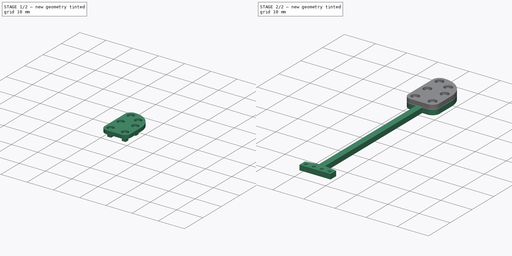
[diagram: build sequence overview — one tinted view per stage of 2, left to right]
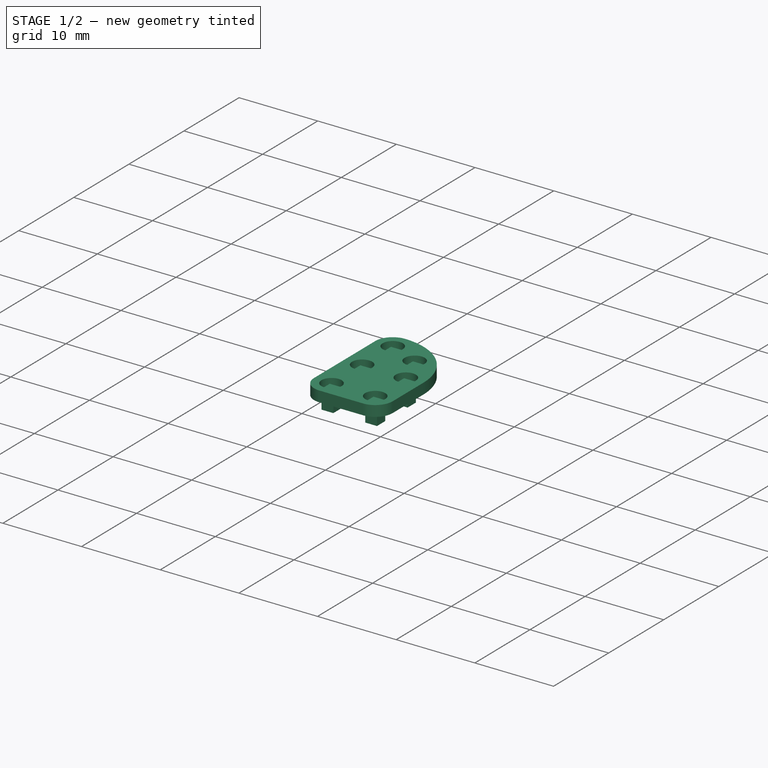
[diagram: stage 1 of 2 — iso view after this stage's code; geometry added in this stage tinted green]
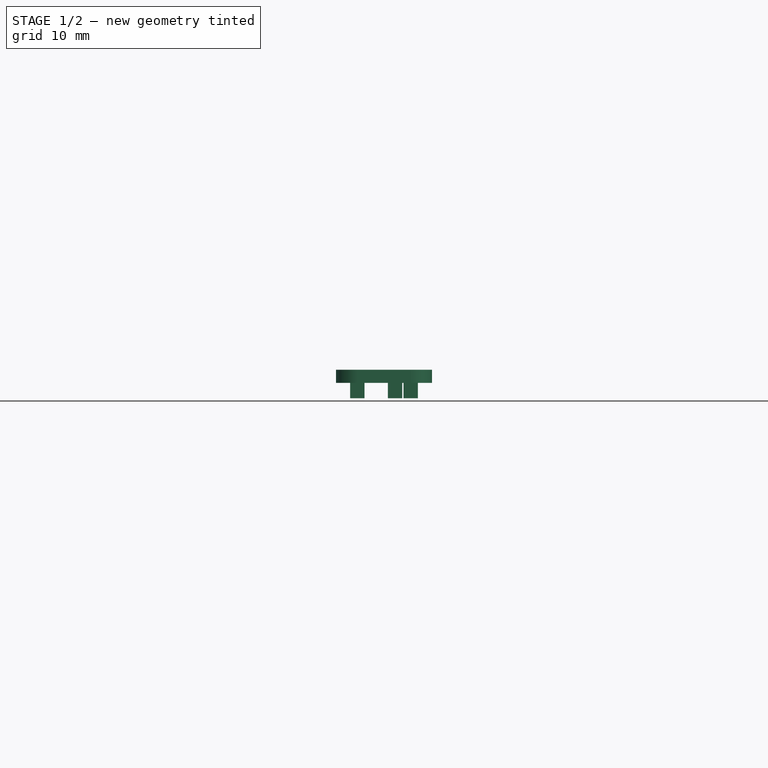
[diagram: stage 1 of 2 — front view after this stage's code; geometry added in this stage tinted green]
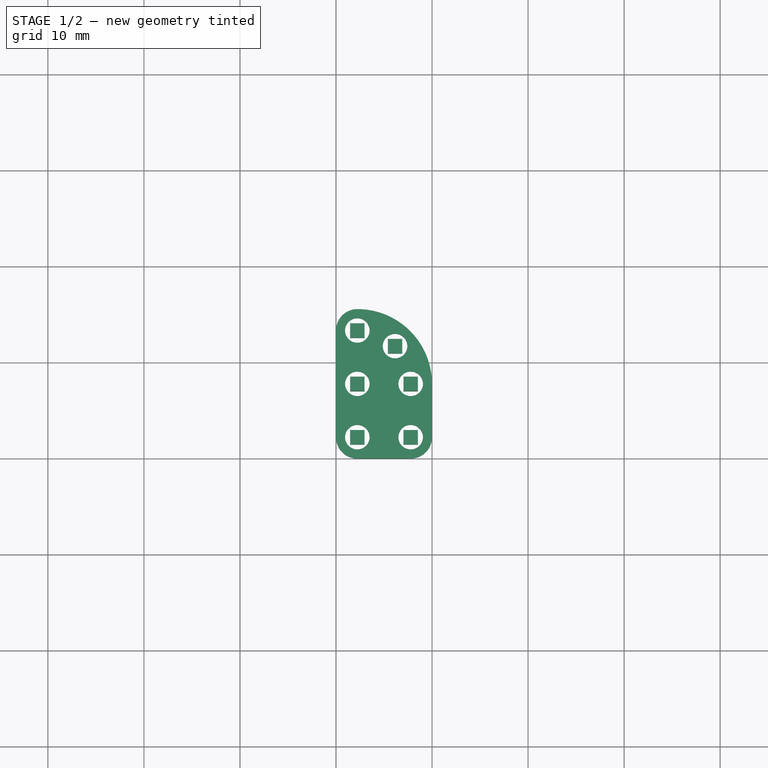
[diagram: stage 1 of 2 — top view after this stage's code; geometry added in this stage tinted green]
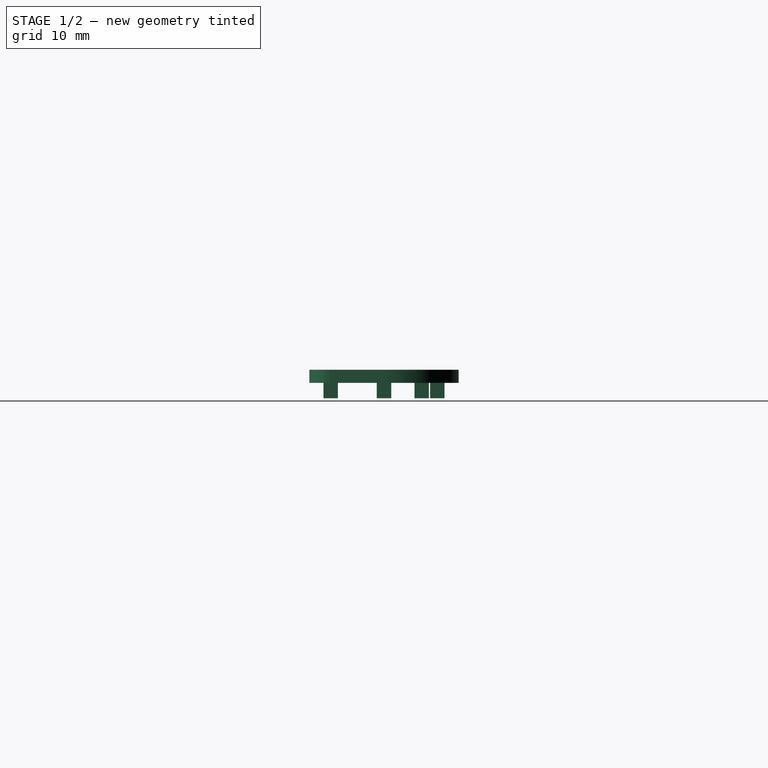
[diagram: stage 1 of 2 — right view after this stage's code; geometry added in this stage tinted green]
FCSTD DOCUMENT  (FreeCAD 1.1R14555 (Git shallow))
Label: PU_001
License: All rights reserved
LicenseURL: http://en.wikipedia.org/wiki/All_rights_reserved
objects: Sketcher::SketchObject×4, PartDesign::Pad×4, App::VarSet×1, App::Point×1, PartDesign::Body×1
note: 21 computed .brp shape members not serialized (recipe doc carries the construction recipe); baked Part::Feature solids carry a one-line shape summary decoded from their .brp

FEATURE [App::VarSet] VarSet
  Distants = 5.55556
  Hight = 15.6667
  expr: Distants = 250 / 45
  expr: Hight = 705 / 45
FEATURE [App::Point] Origin001
  Role = Origin
FEATURE [Sketcher::SketchObject] Sketch
  ArcFitTolerance = 1e-06
  AttachmentSupport = -> [Origin]
  ExternalTypes = [0]
  FullyConstrained = false
  MakeInternals = false
  MapMode = 5
  expr: Constraints[22] = 250 / 45
  expr: Constraints[5] = 115 / 45
  sketch-geometry (22):
    g0: Circle CenterX=2.22 CenterY=13.3311 CenterZ=0 NormalX=0 NormalY=0 NormalZ=1 AngleXU=0 Radius=1.27778
    g1: Circle CenterX=2.22 CenterY=7.77556 CenterZ=0 NormalX=0 NormalY=0 NormalZ=1 AngleXU=0 Radius=1.27778
    g2: Circle CenterX=2.22 CenterY=2.22 CenterZ=0 NormalX=0 NormalY=0 NormalZ=1 AngleXU=0 Radius=1.27778
    g3: Circle CenterX=7.77556 CenterY=7.77556 CenterZ=0 NormalX=0 NormalY=0 NormalZ=1 AngleXU=0 Radius=1.27778
    g4: Circle CenterX=7.77556 CenterY=2.22 CenterZ=0 NormalX=0 NormalY=0 NormalZ=1 AngleXU=0 Radius=1.27778
    g5: Circle CenterX=6.14837 CenterY=11.7039 CenterZ=0 NormalX=0 NormalY=0 NormalZ=1 AngleXU=0 Radius=1.27778
    g6: LineSegment [constr] StartX=2.22 StartY=2.22 StartZ=0 EndX=2.22 EndY=7.77556 EndZ=0
    g7: LineSegment [constr] StartX=2.22 StartY=13.3311 StartZ=0 EndX=2.22 EndY=7.77556 EndZ=0
    g8: LineSegment [constr] StartX=2.22 StartY=7.77556 StartZ=0 EndX=7.77556 EndY=7.77556 EndZ=0
    g9: LineSegment [constr] StartX=7.77556 StartY=2.22 StartZ=0 EndX=2.22 EndY=2.22 EndZ=0
    g10: LineSegment [constr] StartX=0 StartY=0 StartZ=0 EndX=2.22 EndY=0 EndZ=0
    g11: LineSegment [constr] StartX=2.22 StartY=0 StartZ=0 EndX=2.22 EndY=2.22 EndZ=0
    g12: LineSegment [constr] StartX=2.22 StartY=2.22 StartZ=0 EndX=0 EndY=2.22 EndZ=0
    g13: LineSegment [constr] StartX=0 StartY=2.22 StartZ=0 EndX=0 EndY=0 EndZ=0
    g14: ArcOfCircle CenterX=2.22 CenterY=13.3311 CenterZ=0 NormalX=0 NormalY=0 NormalZ=1 AngleXU=0 Radius=2.22 StartAngle=1.5708 EndAngle=3.14159
    g15: ArcOfCircle CenterX=2.22 CenterY=7.77556 CenterZ=0 NormalX=0 NormalY=0 NormalZ=1 AngleXU=0 Radius=7.77556 StartAngle=0 EndAngle=1.5708
    g16: ArcOfCircle CenterX=2.22 CenterY=2.22 CenterZ=0 NormalX=0 NormalY=0 NormalZ=1 AngleXU=0 Radius=2.22 StartAngle=3.14159 EndAngle=4.71239
    g17: ArcOfCircle CenterX=7.77556 CenterY=2.22 CenterZ=0 NormalX=0 NormalY=0 NormalZ=1 AngleXU=0 Radius=2.22 StartAngle=4.71238 EndAngle=6.28319
    g18: LineSegment StartX=9.99556 StartY=2.22 StartZ=0 EndX=9.99556 EndY=7.77556 EndZ=0
    g19: LineSegment StartX=2.22 StartY=3.01861e-11 StartZ=0 EndX=7.77554 EndY=3.01861e-11 EndZ=0
    g20: LineSegment StartX=0 StartY=13.3311 StartZ=0 EndX=0 EndY=2.22 EndZ=0
    g21: LineSegment [constr] StartX=6.14837 StartY=11.7039 StartZ=0 EndX=2.22 EndY=7.77556 EndZ=0
  constraints (53):
    c: Equal(g0,g5)
    c: Equal(g5,g3)
    c: Equal(g3,g4)
    c: Equal(g4,g2)
    c: Equal(g2,g1)
    c: Diameter(g3) = 2.55556
    c: DistanceY(g-1,g2) = 2.22
    c: Coincident(g6,g2)
    c: Coincident(g6,g1)
    c: Vertical(g6)
    c: Coincident(g7,g0)
    c: Coincident(g7,g1)
    c: Coincident(g8,g1)
    c: Coincident(g8,g3)
    c: Horizontal(g8)
    c: Coincident(g9,g4)
    c: Coincident(g9,g2)
    c: Horizontal(g9)
    c: Vertical(g7)
    c: Equal(g7,g8)
    c: Equal(g8,g6)
    c: Equal(g6,g9)
    c: Distance(g6,g6) = 5.55556
    c: Coincident(g10,g11)
    c: Coincident(g11,g12)
    c: Coincident(g12,g13)
    c: Coincident(g13,g10)
    c: Horizontal(g10)
    c: Horizontal(g12)
    c: Vertical(g11)
    c: Vertical(g13)
    c: Coincident(g10,g-1)
    c: Coincident(g11,g2)
    c: Equal(g11,g12)
    c: Coincident(g14,g0)
    c: PointOnObject(g14,g-2)
    c: Coincident(g15,g1)
    c: Tangent(g14,g15) = -1.5708
    c: Horizontal(g3,g15)
    c: Coincident(g17,g4)
    c: PointOnObject(g17,g-1)
    c: Tangent(g18,g15) = -1.5708
    c: Tangent(g18,g17) = -1.5708
    c: Coincident(g19,g16)
    c: Coincident(g19,g17)
    c: Horizontal(g19)
    c: Coincident(g20,g16)
    c: Vertical(g20)
    c: Coincident(g21,g5)
    c: Coincident(g21,g1)
    c: Equal(g21,g8)
    c: Angle(g8,g21) = 0.785398
    c: Tangent(g20,g14) = -1.5708
FEATURE [PartDesign::Pad] Pad
  Direction = (0,0,1)
  Length = 1.35556
  Length2 = 10
  Profile = -> Sketch
  ReferenceAxis = -> Sketch [N_Axis]
  Refine = true
  SideType = 0
  Suppressed = false
  Type = 0
  Type2 = 0
  expr: Length = 133 / 45 - 1.6
FEATURE [Sketcher::SketchObject] Sketch001
  ArcFitTolerance = 1e-06
  AttachmentSupport = -> [Origin]
  ExternalGeometry = -> [Pad,Sketch]
  ExternalTypes = [0,0,0,0,0,0]
  FullyConstrained = true
  MakeInternals = false
  MapMode = 5
  sketch-geometry (31):
    g0: LineSegment StartX=1.47 StartY=14.0811 StartZ=0 EndX=1.47 EndY=12.5811 EndZ=0
    g1: LineSegment StartX=1.47 StartY=12.5811 StartZ=0 EndX=2.97 EndY=12.5811 EndZ=0
    g2: LineSegment StartX=2.97 StartY=12.5811 StartZ=0 EndX=2.97 EndY=14.0811 EndZ=0
    g3: LineSegment StartX=2.97 StartY=14.0811 StartZ=0 EndX=1.47 EndY=14.0811 EndZ=0
    g4: GeomPoint [constr] X=2.22 Y=13.3311 Z=0
    g5: LineSegment StartX=7.02556 StartY=8.52556 StartZ=0 EndX=7.02556 EndY=7.02556 EndZ=0
    g6: LineSegment StartX=7.02556 StartY=7.02556 StartZ=0 EndX=8.52556 EndY=7.02556 EndZ=0
    g7: LineSegment StartX=8.52556 StartY=7.02556 StartZ=0 EndX=8.52556 EndY=8.52556 EndZ=0
    g8: LineSegment StartX=8.52556 StartY=8.52556 StartZ=0 EndX=7.02556 EndY=8.52556 EndZ=0
    g9: GeomPoint [constr] X=7.77556 Y=7.77556 Z=0
    g10: LineSegment StartX=1.47 StartY=7.02556 StartZ=0 EndX=2.97 EndY=7.02556 EndZ=0
    g11: LineSegment StartX=2.97 StartY=7.02556 StartZ=0 EndX=2.97 EndY=8.52556 EndZ=0
    g12: LineSegment StartX=2.97 StartY=8.52556 StartZ=0 EndX=1.47 EndY=8.52556 EndZ=0
    g13: LineSegment StartX=1.47 StartY=8.52556 StartZ=0 EndX=1.47 EndY=7.02556 EndZ=0
    g14: GeomPoint [constr] X=2.22 Y=7.77556 Z=0
    g15: LineSegment StartX=1.47 StartY=1.47 StartZ=0 EndX=2.97 EndY=1.47 EndZ=0
    g16: LineSegment StartX=2.97 StartY=1.47 StartZ=0 EndX=2.97 EndY=2.97 EndZ=0
    g17: LineSegment StartX=2.97 StartY=2.97 StartZ=0 EndX=1.47 EndY=2.97 EndZ=0
    g18: LineSegment StartX=1.47 StartY=2.97 StartZ=0 EndX=1.47 EndY=1.47 EndZ=0
    g19: GeomPoint [constr] X=2.22 Y=2.22 Z=0
    g20: LineSegment StartX=7.02556 StartY=1.47 StartZ=0 EndX=8.52556 EndY=1.47 EndZ=0
    g21: LineSegment StartX=8.52556 StartY=1.47 StartZ=0 EndX=8.52556 EndY=2.97 EndZ=0
    g22: LineSegment StartX=8.52556 StartY=2.97 StartZ=0 EndX=7.02556 EndY=2.97 EndZ=0
    g23: LineSegment StartX=7.02556 StartY=2.97 StartZ=0 EndX=7.02556 EndY=1.47 EndZ=0
    g24: GeomPoint [constr] X=7.77556 Y=2.22 Z=0
    g25: LineSegment StartX=5.39837 StartY=10.9539 StartZ=0 EndX=6.89837 EndY=10.9539 EndZ=0
    g26: LineSegment StartX=6.89837 StartY=10.9539 StartZ=0 EndX=6.89837 EndY=12.4539 EndZ=0
    g27: LineSegment StartX=6.89837 StartY=12.4539 StartZ=0 EndX=5.39837 EndY=12.4539 EndZ=0
    g28: LineSegment StartX=5.39837 StartY=12.4539 StartZ=0 EndX=5.39837 EndY=10.9539 EndZ=0
    g29: GeomPoint [constr] X=6.14837 Y=11.7039 Z=0
    g30: GeomPoint [constr] X=4.99778 Y=2.22 Z=0
  constraints (74):
    c: Coincident(g0,g1)
    c: Coincident(g1,g2)
    c: Coincident(g2,g3)
    c: Coincident(g3,g0)
    c: Vertical(g0)
    c: Vertical(g2)
    c: Horizontal(g1)
    c: Horizontal(g3)
    c: Symmetric(g2,g0,g4)
    c: Coincident(g5,g6)
    c: Coincident(g6,g7)
    c: Coincident(g7,g8)
    c: Coincident(g8,g5)
    c: Vertical(g5)
    c: Vertical(g7)
    c: Horizontal(g6)
    c: Horizontal(g8)
    c: Symmetric(g7,g5,g9)
    c: Coincident(g10,g11)
    c: Coincident(g11,g12)
    c: Coincident(g12,g13)
    c: Coincident(g13,g10)
    c: Horizontal(g10)
    c: Horizontal(g12)
    c: Vertical(g11)
    c: Vertical(g13)
    c: Symmetric(g12,g10,g14)
    c: Coincident(g15,g16)
    c: Coincident(g16,g17)
    c: Coincident(g17,g18)
    c: Coincident(g18,g15)
    c: Horizontal(g15)
    c: Horizontal(g17)
    c: Vertical(g16)
    c: Vertical(g18)
    c: Symmetric(g17,g15,g19)
    c: Coincident(g20,g21)
    c: Coincident(g21,g22)
    c: Coincident(g22,g23)
    c: Coincident(g23,g20)
    c: Horizontal(g20)
    c: Horizontal(g22)
    c: Vertical(g21)
    c: Vertical(g23)
    c: Symmetric(g22,g20,g24)
    c: Equal(g5,g11)
    c: Equal(g11,g16)
    c: Equal(g16,g23)
    c: Equal(g22,g8)
    c: Equal(g1,g12)
    c: Equal(g12,g17)
    c: Vertical(g9,g24)
    c: Horizontal(g24,g19)
    c: DistanceY(g0,g0) = 1.5
    c: DistanceX(g1,g1) = 1.5
    c: Coincident(g4,g-3)
    c: Coincident(g19,g-6)
    c: Coincident(g14,g-4)
    c: Coincident(g9,g-5)
    c: Equal(g5,g2)
    c: Equal(g12,g8)
    c: Coincident(g25,g26)
    c: Coincident(g26,g27)
    c: Coincident(g27,g28)
    c: Coincident(g28,g25)
    c: Horizontal(g25)
    c: Horizontal(g27)
    c: Vertical(g26)
    c: Vertical(g28)
    c: Symmetric(g27,g25,g29)
    c: Equal(g8,g25)
    c: Equal(g25,g28)
    c: Coincident(g29,g-8)
    c: Symmetric(g19,g24,g30)
FEATURE [PartDesign::Pad] Pad001
  BaseFeature = -> Pad
  Direction = (0,0,1)
  Length = 0.8
  Length2 = 1.6
  Profile = -> Sketch001
  ReferenceAxis = -> Sketch001 [N_Axis]
  Refine = true
  SideType = 1
  Suppressed = false
  Type = 0
  Type2 = 0
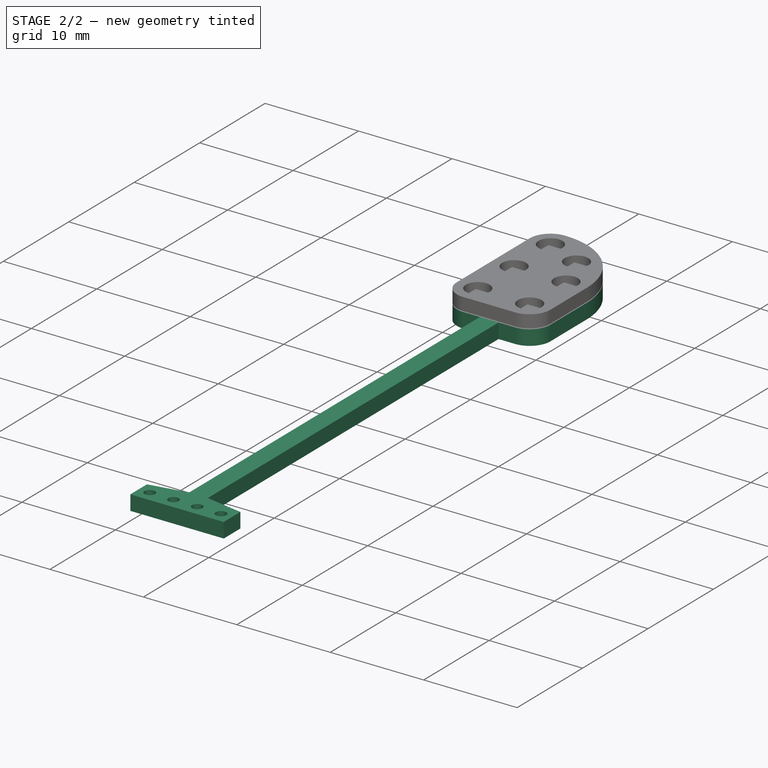
[diagram: stage 2 of 2 — iso view after this stage's code; geometry added in this stage tinted green]
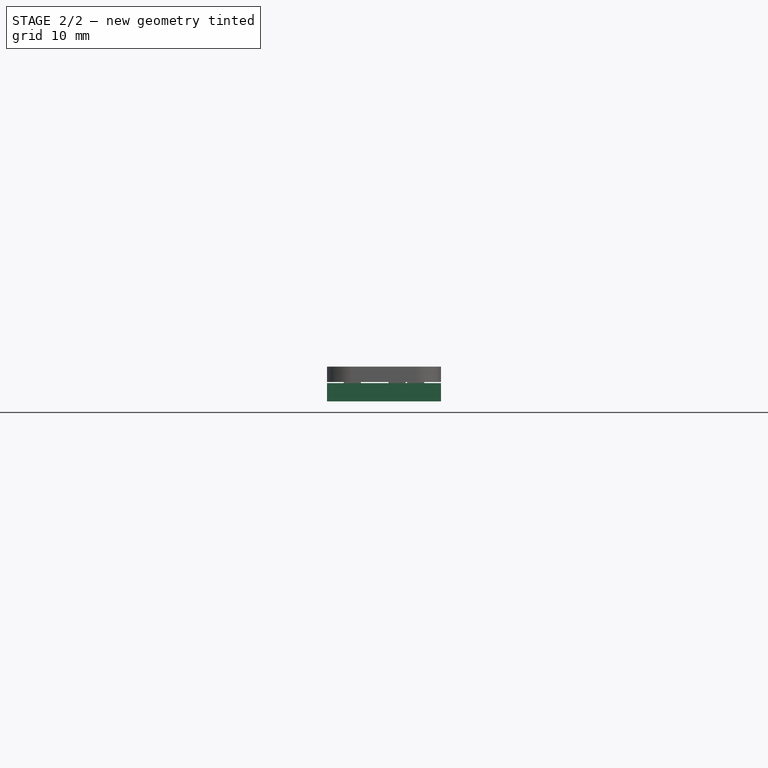
[diagram: stage 2 of 2 — front view after this stage's code; geometry added in this stage tinted green]
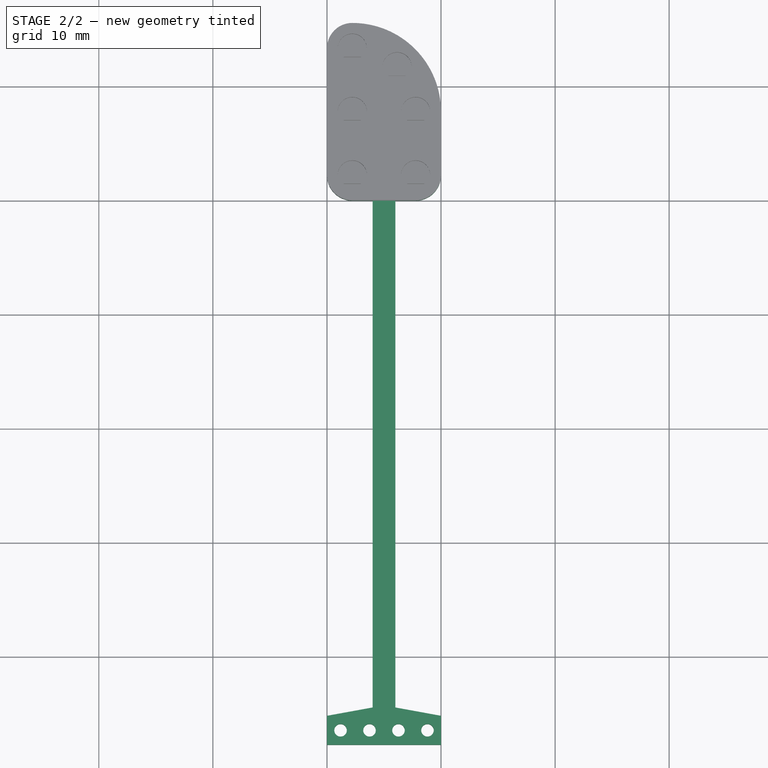
[diagram: stage 2 of 2 — top view after this stage's code; geometry added in this stage tinted green]
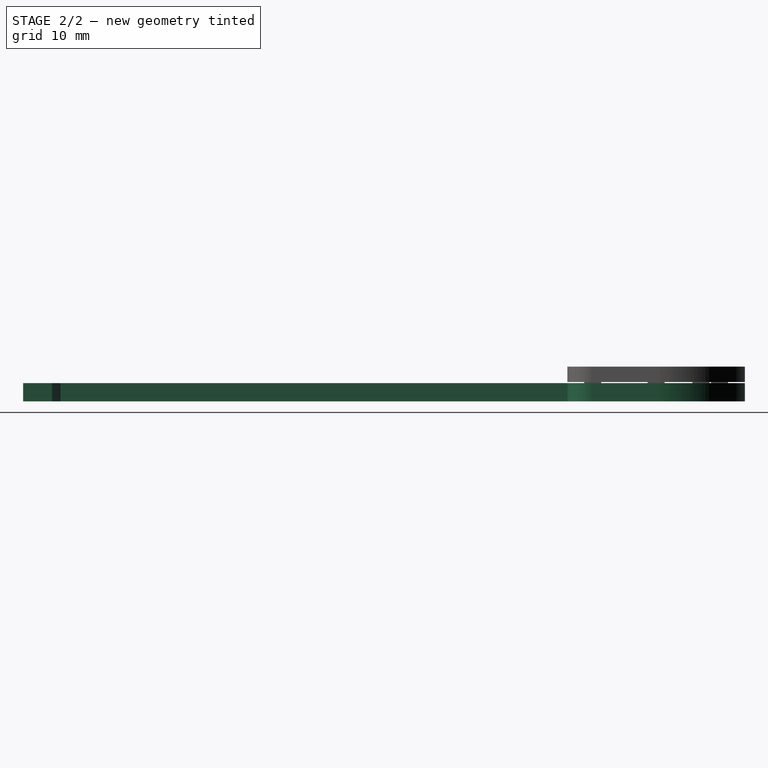
[diagram: stage 2 of 2 — right view after this stage's code; geometry added in this stage tinted green]
FEATURE [Sketcher::SketchObject] Sketch002
  ArcFitTolerance = 1e-06
  AttachmentOffset = pos=(0,0,-1.7) rot=(0,0,1;0rad)
  AttachmentSupport = -> [Origin]
  ExternalGeometry = -> [Pad001]
  ExternalTypes = [0,0,0,0,0,0]
  FullyConstrained = false
  MakeInternals = false
  MapMode = 5
  Placement = pos=(0,0,-1.7) rot=(0,0,1;0rad)
  sketch-geometry (7):
    g0: ArcOfCircle CenterX=2.22 CenterY=13.3311 CenterZ=0 NormalX=0 NormalY=0 NormalZ=1 AngleXU=0 Radius=2.22 StartAngle=1.5708 EndAngle=3.14159
    g1: ArcOfCircle CenterX=2.22 CenterY=7.77556 CenterZ=0 NormalX=0 NormalY=0 NormalZ=1 AngleXU=0 Radius=7.77556 StartAngle=0 EndAngle=1.5708
    g2: ArcOfCircle CenterX=7.77556 CenterY=2.22 CenterZ=0 NormalX=0 NormalY=0 NormalZ=1 AngleXU=0 Radius=2.22 StartAngle=4.71238 EndAngle=6.28319
    g3: ArcOfCircle CenterX=2.22 CenterY=2.22 CenterZ=0 NormalX=0 NormalY=0 NormalZ=1 AngleXU=0 Radius=2.22 StartAngle=3.14159 EndAngle=4.71239
    g4: LineSegment StartX=0 StartY=13.3311 StartZ=0 EndX=0 EndY=2.22 EndZ=0
    g5: LineSegment StartX=2.22 StartY=3.01861e-11 StartZ=0 EndX=7.77554 EndY=3.01861e-11 EndZ=0
    g6: LineSegment StartX=9.99556 StartY=2.22 StartZ=0 EndX=9.99556 EndY=7.77556 EndZ=0
  constraints (14):
    c: Coincident(g0,g-5)
    c: Tangent(g0,g-4) = -1.5708
    c: Coincident(g1,g0)
    c: Tangent(g1,g-3) = -1.5708
    c: Tangent(g2,g-7) = -1.5708
    c: Coincident(g2,g-7)
    c: Coincident(g3,g-5)
    c: Coincident(g3,g-6)
    c: Coincident(g4,g0)
    c: Coincident(g4,g3)
    c: Coincident(g5,g3)
    c: Coincident(g5,g2)
    c: Coincident(g6,g2)
    c: Tangent(g6,g1) = -1.5708
FEATURE [PartDesign::Pad] Pad002
  BaseFeature = -> Pad001
  Direction = (0,0,1)
  Length = 1.6
  Length2 = 10
  Profile = -> Sketch002
  ReferenceAxis = -> Sketch002 [N_Axis]
  Refine = true
  SideType = 0
  Suppressed = false
  Type = 0
  Type2 = 0
FEATURE [Sketcher::SketchObject] Sketch003
  ArcFitTolerance = 1e-06
  AttachmentSupport = -> [Pad002]
  ExternalTypes = [0]
  FullyConstrained = true
  MakeInternals = false
  MapMode = 5
  Placement = pos=(0,0,-1.7) rot=(1,0,0;3.14159rad)
  expr: Constraints[27] = 450 / 45 / 2
  expr: Constraints[45] = 2000 / 45
  sketch-geometry (19):
    g0: Circle CenterX=1.19 CenterY=46.4444 CenterZ=0 NormalX=0 NormalY=0 NormalZ=1 AngleXU=0 Radius=0.55
    g1: Circle CenterX=3.73 CenterY=46.4444 CenterZ=0 NormalX=0 NormalY=0 NormalZ=1 AngleXU=0 Radius=0.55
    g2: Circle CenterX=6.27 CenterY=46.4444 CenterZ=0 NormalX=0 NormalY=0 NormalZ=1 AngleXU=0 Radius=0.55
    g3: Circle CenterX=8.81 CenterY=46.4444 CenterZ=0 NormalX=0 NormalY=0 NormalZ=1 AngleXU=0 Radius=0.55
    g4: LineSegment [constr] StartX=1.19 StartY=46.4444 StartZ=0 EndX=3.73 EndY=46.4444 EndZ=0
    g5: LineSegment [constr] StartX=3.73 StartY=46.4444 StartZ=0 EndX=6.27 EndY=46.4444 EndZ=0
    g6: LineSegment [constr] StartX=6.27 StartY=46.4444 StartZ=0 EndX=8.81 EndY=46.4444 EndZ=0
    g7: LineSegment [constr] StartX=10 StartY=45.1744 StartZ=0 EndX=0 EndY=45.1744 EndZ=0
    g8: LineSegment StartX=0 StartY=45.1744 StartZ=0 EndX=0 EndY=47.7144 EndZ=0
    g9: LineSegment StartX=0 StartY=47.7144 StartZ=0 EndX=10 EndY=47.7144 EndZ=0
    g10: LineSegment StartX=10 StartY=47.7144 StartZ=0 EndX=10 EndY=45.1744 EndZ=0
    g11: GeomPoint [constr] X=5 Y=46.4444 Z=0
    g12: LineSegment StartX=4 StartY=0 StartZ=0 EndX=6 EndY=0 EndZ=0
    g13: LineSegment StartX=6 StartY=0 StartZ=0 EndX=6 EndY=44.4444 EndZ=0
    g14: LineSegment [constr] StartX=6 StartY=44.4444 StartZ=0 EndX=4 EndY=44.4444 EndZ=0
    g15: LineSegment StartX=4 StartY=44.4444 StartZ=0 EndX=4 EndY=0 EndZ=0
    g16: GeomPoint [constr] X=5 Y=22.2222 Z=0
    g17: LineSegment StartX=0 StartY=45.1744 StartZ=0 EndX=4 EndY=44.4444 EndZ=0
    g18: LineSegment StartX=6 StartY=44.4444 StartZ=0 EndX=10 EndY=45.1744 EndZ=0
  constraints (47):
    c: Equal(g0,g1)
    c: Equal(g1,g2)
    c: Equal(g2,g3)
    c: Horizontal(g0,g1)
    c: Horizontal(g1,g2)
    c: Horizontal(g2,g3)
    c: Coincident(g4,g0)
    c: Coincident(g4,g1)
    c: Coincident(g5,g1)
    c: Coincident(g5,g2)
    c: Coincident(g6,g2)
    c: Coincident(g6,g3)
    c: Equal(g4,g5)
    c: Equal(g5,g6)
    c: Diameter(g0) = 1.1
    c: DistanceX(g4,g4) = 2.54
    c: Coincident(g7,g8)
    c: Coincident(g8,g9)
    c: Coincident(g9,g10)
    c: Coincident(g10,g7)
    c: Horizontal(g7)
    c: Horizontal(g9)
    c: Vertical(g8)
    c: Vertical(g10)
    c: Symmetric(g9,g7,g11)
    c: Symmetric(g1,g2,g11)
    c: DistanceY(g8,g8) = 2.54
    c: DistanceX(g-1,g11) = 5
    c: Coincident(g12,g13)
    c: Coincident(g13,g14)
    c: Coincident(g14,g15)
    c: Coincident(g15,g12)
    c: Horizontal(g12)
    c: Horizontal(g14)
    c: Vertical(g13)
    c: Vertical(g15)
    c: Symmetric(g14,g12,g16)
    c: Vertical(g11,g16)
    c: Coincident(g17,g7)
    c: Coincident(g17,g14)
    c: Coincident(g18,g13)
    c: Coincident(g18,g7)
    c: Horizontal(g12,g-1)
    c: Vertical(g7,g-1)
    c: Distance(g14,g14) = 2
    c: DistanceY(g13,g13) = 44.4444
    c: DistanceY(g13,g11) = 2
FEATURE [PartDesign::Pad] Pad003
  BaseFeature = -> Pad002
  Direction = (0,0,-1)
  Length = 1.6
  Length2 = 10
  Profile = -> Sketch003
  ReferenceAxis = -> Sketch003 [N_Axis]
  Refine = true
  Reversed = true
  SideType = 0
  Suppressed = false
  Type = 0
  Type2 = 0
FEATURE [PartDesign::Body] Body
  AllowCompound = true
  Group = -> [Sketch,Pad,Sketch001,Pad001,Sketch002,Pad002,Sketch003,Pad003]
  Origin = -> Origin
  Tip = -> Pad003
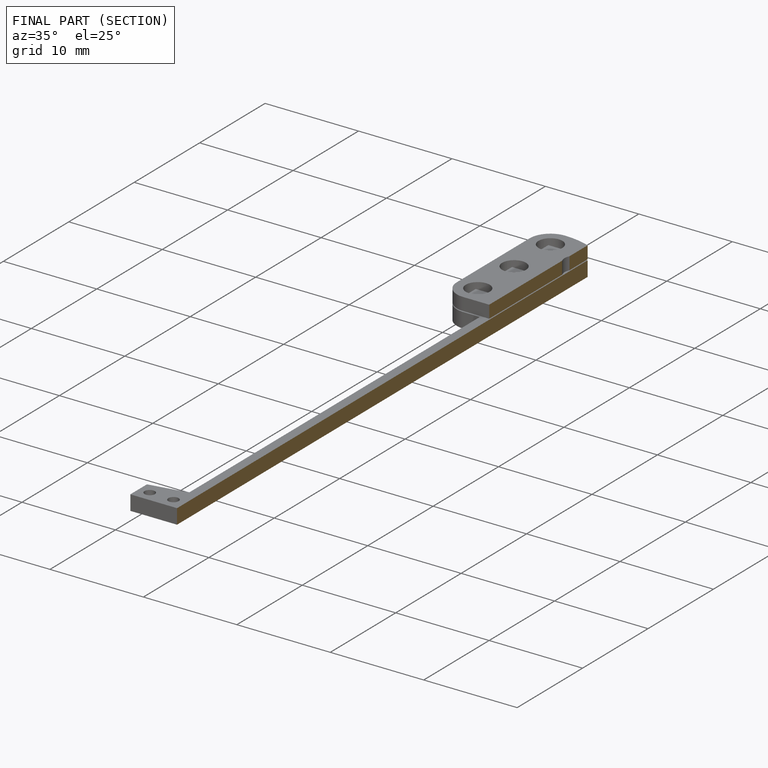
[diagram: finished part — half-section view (interior)]
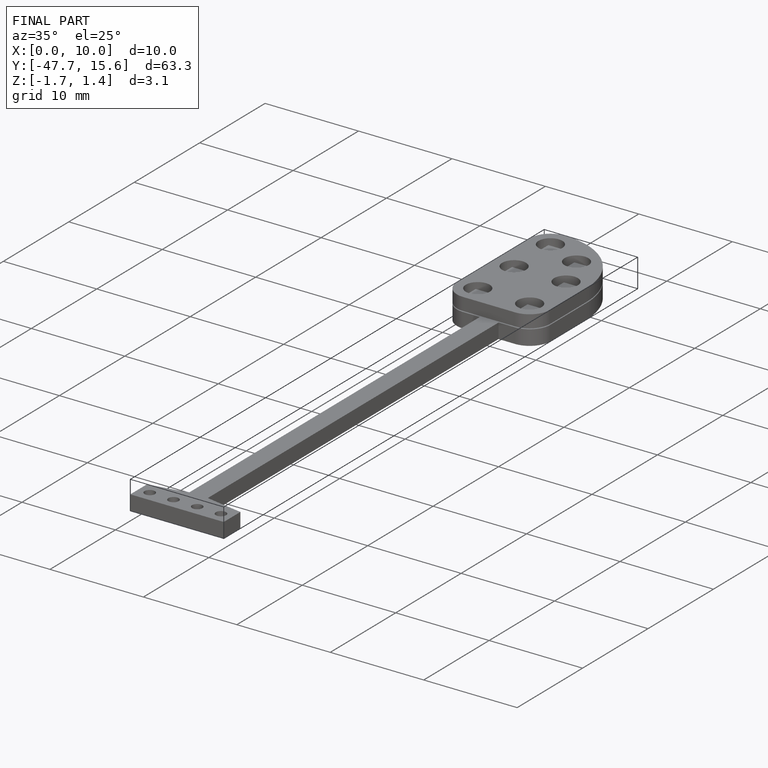
[diagram: finished part — iso view with bounding-box wireframe]
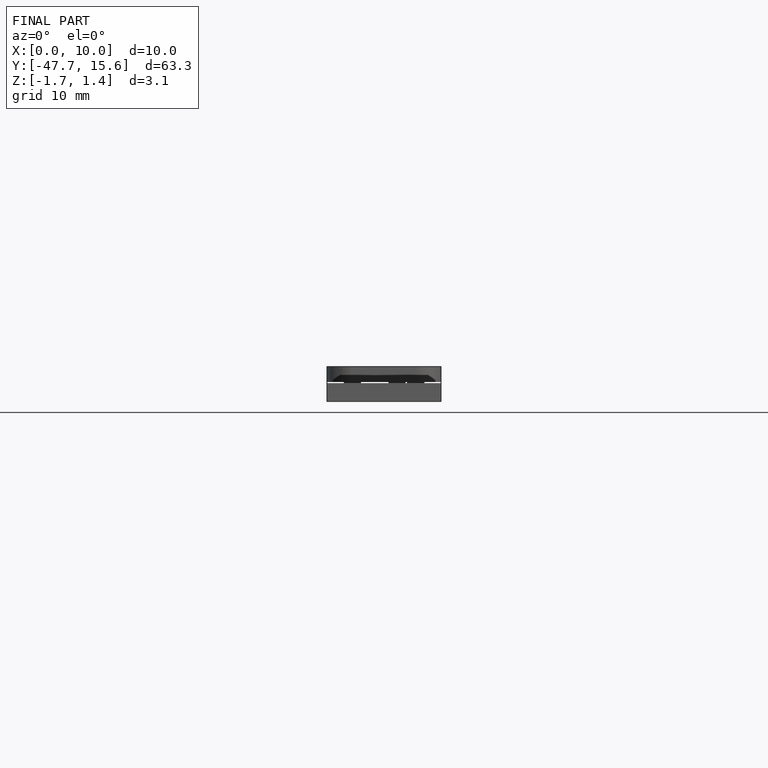
[diagram: finished part — front view with bounding-box wireframe]
